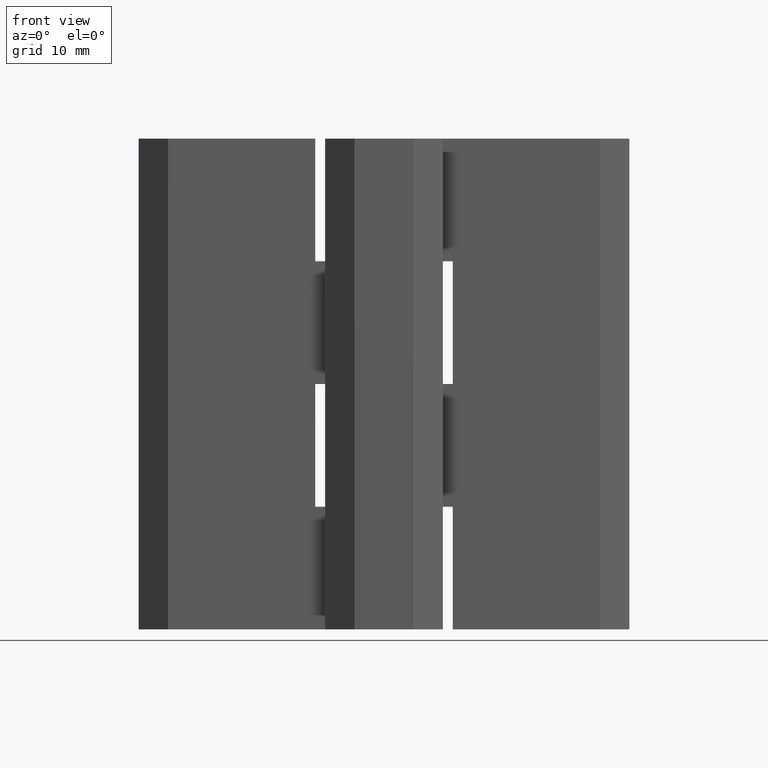
[diagram: clean part render]
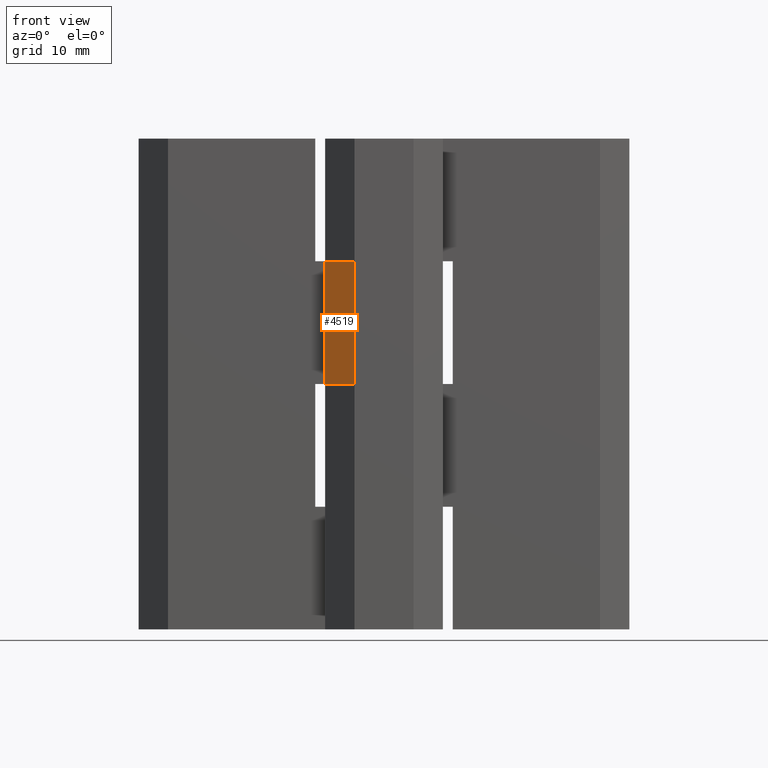
[diagram: same view with one face highlighted and labeled with its STEP entity id]
A machine part, front view. The second image highlights one B-rep face of the part: STEP entity #4519.
In plain terms, the highlighted face is a freeform B-spline surface patch.
Its self-contained STEP definition (entity closure, byte-faithful):
#4046=CARTESIAN_POINT('',(-3.0,-5.0,25.0));
#4047=VERTEX_POINT('',#4046);
#4053=CARTESIAN_POINT('',(-5.999999999999861,-2.000000000000130,25.0));
#4054=VERTEX_POINT('',#4053);
#4055=CARTESIAN_POINT('',(-5.999999999999861,-2.000000000000130,25.0));
#4056=CARTESIAN_POINT('',(-3.0,-5.0,25.0));
#4057=QUASI_UNIFORM_CURVE('',1,(#4055,#4056),.UNSPECIFIED.,.F.,.U.);
#4058=EDGE_CURVE('',#4054,#4047,#4057,.T.);
#4205=CARTESIAN_POINT('',(-5.999999999999861,-2.000000000000130,37.500000000000000));
#4206=VERTEX_POINT('',#4205);
#4214=CARTESIAN_POINT('',(-3.0,-5.0,37.500000000000000));
#4215=VERTEX_POINT('',#4214);
#4216=CARTESIAN_POINT('',(-3.0,-5.0,37.500000000000000));
#4217=CARTESIAN_POINT('',(-5.999999999999861,-2.000000000000130,37.500000000000000));
#4218=QUASI_UNIFORM_CURVE('',1,(#4216,#4217),.UNSPECIFIED.,.F.,.U.);
#4219=EDGE_CURVE('',#4215,#4206,#4218,.T.);
#4493=CARTESIAN_POINT('',(-3.0,-5.0,37.500000000000000));
#4494=CARTESIAN_POINT('',(-3.0,-5.0,25.0));
#4495=QUASI_UNIFORM_CURVE('',1,(#4493,#4494),.UNSPECIFIED.,.F.,.U.);
#4496=EDGE_CURVE('',#4215,#4047,#4495,.T.);
#4504=CARTESIAN_POINT('',(-2.850150005814666,-5.149849994185489,24.375625024227428));
#4505=CARTESIAN_POINT('',(-6.149850074651544,-1.850149925348449,24.375625024227428));
#4506=CARTESIAN_POINT('',(-2.850150005814666,-5.149849994185489,38.124375311048702));
#4507=CARTESIAN_POINT('',(-6.149850074651544,-1.850149925348449,38.124375311048702));
#4508=B_SPLINE_SURFACE_WITH_KNOTS('',1,1,((#4504,#4506),(#4505,#4507)),.UNSPECIFIED.,.F.,.F.,.U.,(2,2),(2,2),(0.0,4.666480589112664),(0.0,13.748750286821281),.UNSPECIFIED.);
#4509=CARTESIAN_POINT('',(-5.999999999999861,-2.000000000000130,37.500000000000000));
#4510=CARTESIAN_POINT('',(-5.999999999999861,-2.000000000000130,25.0));
#4511=QUASI_UNIFORM_CURVE('',1,(#4509,#4510),.UNSPECIFIED.,.F.,.U.);
#4512=EDGE_CURVE('',#4206,#4054,#4511,.T.);
#4513=ORIENTED_EDGE('',*,*,#4512,.T.);
#4514=ORIENTED_EDGE('',*,*,#4058,.T.);
#4515=ORIENTED_EDGE('',*,*,#4496,.F.);
#4516=ORIENTED_EDGE('',*,*,#4219,.T.);
#4517=EDGE_LOOP('',(#4513,#4514,#4515,#4516));
#4518=FACE_OUTER_BOUND('',#4517,.T.);
#4519=ADVANCED_FACE('',(#4518),#4508,.F.);